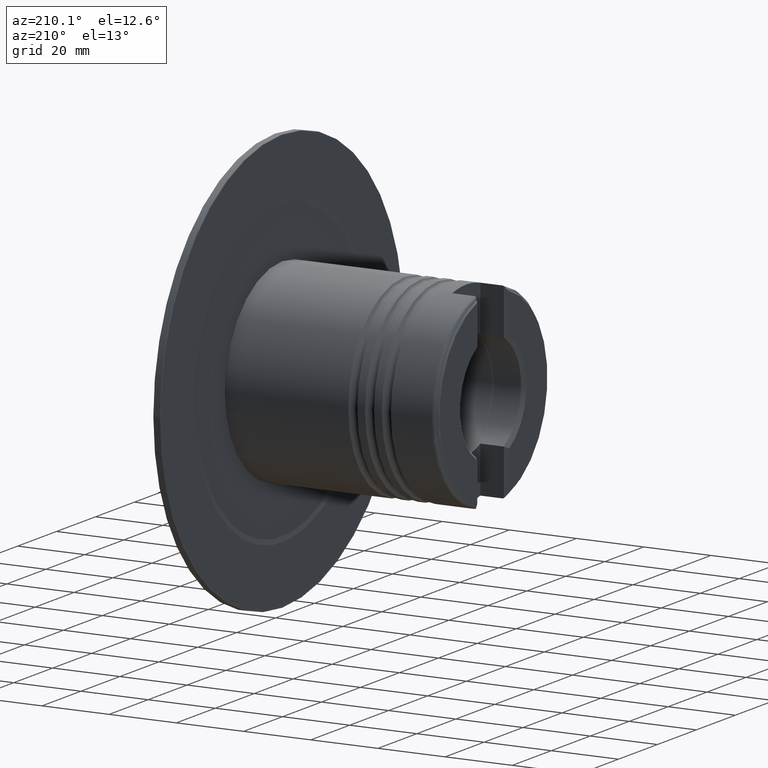
[diagram: clean part render]
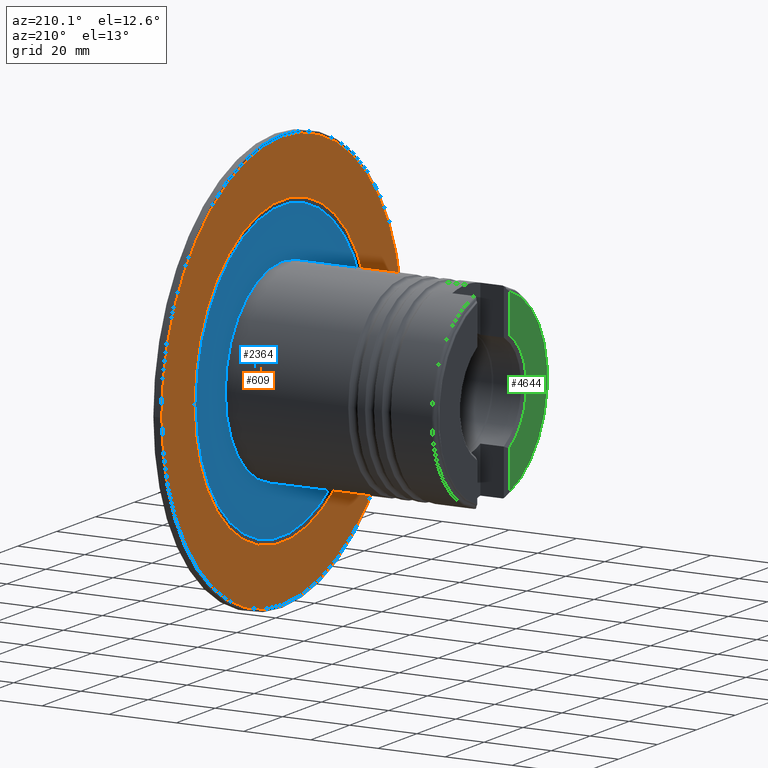
[diagram: same view with three faces highlighted in distinct colors, each labeled with its STEP entity id]
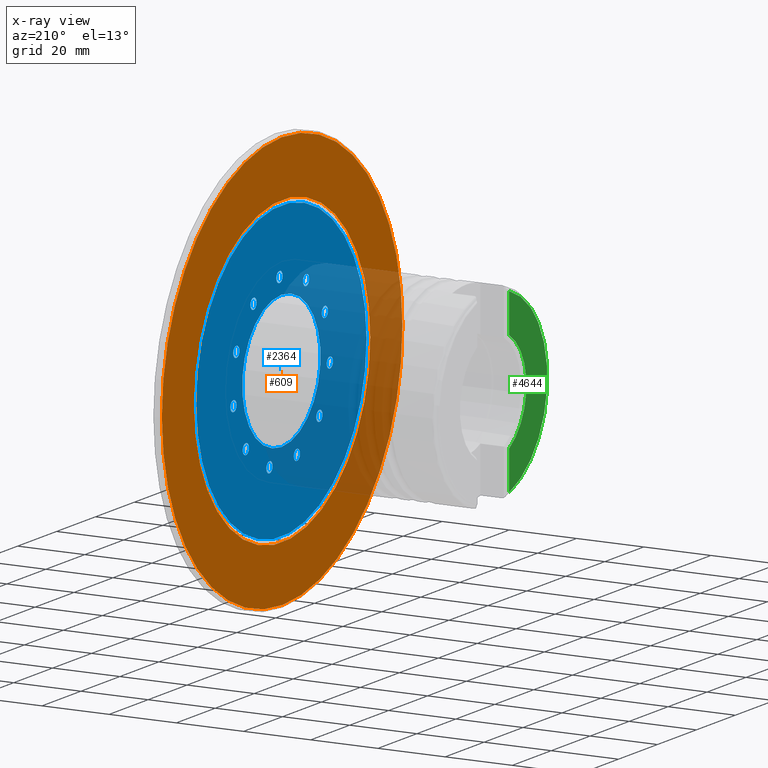
[diagram: x-ray of the same camera — body ghosted, the three highlighted faces saturated]
A machine part, auxiliary view with three faces highlighted in distinct colors.
The next image is the same camera in x-ray (body ghosted, the three faces saturated) — at least one of them is partly hidden behind the body in this view.
Their STEP definitions:

[orange] entity #609 — the highlighted planar face has unit normal (-1, -0, 0).
#72 = ORIENTED_EDGE ( 'NONE', *, *, #5930, .F. ) ;
#248 = ORIENTED_EDGE ( 'NONE', *, *, #1779, .T. ) ;
#594 = AXIS2_PLACEMENT_3D ( 'NONE', #5039, #3518, #1921 ) ;
#609 = ADVANCED_FACE ( 'NONE', ( #2306, #4338 ), #2351, .T. ) ;
#657 = VERTEX_POINT ( 'NONE', #1330 ) ;
#713 = ORIENTED_EDGE ( 'NONE', *, *, #1590, .T. ) ;
#1271 = AXIS2_PLACEMENT_3D ( 'NONE', #4524, #6005, #1855 ) ;
#1295 = AXIS2_PLACEMENT_3D ( 'NONE', #2638, #5232, #1654 ) ;
#1330 = CARTESIAN_POINT ( 'NONE',  ( -1.933569560005745647, -61.74957571563187742, 0.0000000000000000000 ) ) ;
#1429 = VERTEX_POINT ( 'NONE', #4349 ) ;
#1590 = EDGE_CURVE ( 'NONE', #3475, #1429, #3017, .T. ) ;
#1654 = DIRECTION ( 'NONE',  ( -1.246297190717710799E-16, 1.000000000000000000, 0.0000000000000000000 ) ) ;
#1779 = EDGE_CURVE ( 'NONE', #1429, #3475, #4567, .T. ) ;
#1855 = DIRECTION ( 'NONE',  ( 1.244307841631024346E-16, -1.000000000000000000, 0.0000000000000000000 ) ) ;
#1921 = DIRECTION ( 'NONE',  ( -1.246297190717710799E-16, 1.000000000000000000, 0.0000000000000000000 ) ) ;
#2006 = CARTESIAN_POINT ( 'NONE',  ( -1.933569560005747423, -45.23681300828359042, 0.0000000000000000000 ) ) ;
#2306 = FACE_BOUND ( 'NONE', #3108, .T. ) ;
#2351 = PLANE ( 'NONE',  #1271 ) ;
#2402 = AXIS2_PLACEMENT_3D ( 'NONE', #5856, #5369, #4354 ) ;
#2638 = CARTESIAN_POINT ( 'NONE',  ( -1.933569560005753196, -2.825265075440890765E-15, 0.0000000000000000000 ) ) ;
#3017 = CIRCLE ( 'NONE', #594, 45.23681300828359042 ) ;
#3108 = EDGE_LOOP ( 'NONE', ( #713, #248 ) ) ;
#3198 = EDGE_CURVE ( 'NONE', #657, #4538, #5076, .T. ) ;
#3255 = CIRCLE ( 'NONE', #5269, 61.74957571563187742 ) ;
#3475 = VERTEX_POINT ( 'NONE', #2006 ) ;
#3518 = DIRECTION ( 'NONE',  ( 1.000000000000000000, 1.244307841631024346E-16, -0.0000000000000000000 ) ) ;
#4024 = EDGE_LOOP ( 'NONE', ( #4034, #72 ) ) ;
#4034 = ORIENTED_EDGE ( 'NONE', *, *, #3198, .F. ) ;
#4234 = CARTESIAN_POINT ( 'NONE',  ( -1.933569560005760746, 61.74957571563187742, 7.595905422863419188E-15 ) ) ;
#4338 = FACE_OUTER_BOUND ( 'NONE', #4024, .T. ) ;
#4349 = CARTESIAN_POINT ( 'NONE',  ( -1.933569560005758747, 45.23681300828359042, 5.539911825422184346E-15 ) ) ;
#4354 = DIRECTION ( 'NONE',  ( -1.229063539213480583E-16, 1.000000000000000000, 0.0000000000000000000 ) ) ;
#4524 = CARTESIAN_POINT ( 'NONE',  ( -1.933569560005760080, 61.74957571563187742, 0.0000000000000000000 ) ) ;
#4538 = VERTEX_POINT ( 'NONE', #4234 ) ;
#4567 = CIRCLE ( 'NONE', #1295, 45.23681300828359042 ) ;
#4581 = DIRECTION ( 'NONE',  ( 1.000000000000000000, 1.244307841631024346E-16, -0.0000000000000000000 ) ) ;
#5039 = CARTESIAN_POINT ( 'NONE',  ( -1.933569560005753196, -2.825265075440890765E-15, 0.0000000000000000000 ) ) ;
#5076 = CIRCLE ( 'NONE', #2402, 61.74957571563187742 ) ;
#5126 = CARTESIAN_POINT ( 'NONE',  ( -1.933569560005753196, -2.825265075440890765E-15, 0.0000000000000000000 ) ) ;
#5232 = DIRECTION ( 'NONE',  ( 1.000000000000000000, 1.244307841631024346E-16, -0.0000000000000000000 ) ) ;
#5269 = AXIS2_PLACEMENT_3D ( 'NONE', #5126, #4581, #6119 ) ;
#5369 = DIRECTION ( 'NONE',  ( 1.000000000000000000, 1.244307841631024346E-16, -0.0000000000000000000 ) ) ;
#5856 = CARTESIAN_POINT ( 'NONE',  ( -1.933569560005753196, -2.825265075440890765E-15, 0.0000000000000000000 ) ) ;
#5930 = EDGE_CURVE ( 'NONE', #4538, #657, #3255, .T. ) ;
#6005 = DIRECTION ( 'NONE',  ( -1.000000000000000000, -1.244307841631024346E-16, 0.0000000000000000000 ) ) ;
#6119 = DIRECTION ( 'NONE',  ( -1.229063539213480583E-16, 1.000000000000000000, 0.0000000000000000000 ) ) ;

[blue] entity #2364 — the highlighted planar face has unit normal (-1, 0, -0).
#10 = AXIS2_PLACEMENT_3D ( 'NONE', #2525, #1468, #1410 ) ;
#40 = DIRECTION ( 'NONE',  ( 0.0000000000000000000, 0.9898214418809340165, -0.1423148382732756234 ) ) ;
#106 = EDGE_CURVE ( 'NONE', #4244, #3899, #3620, .T. ) ;
#170 = DIRECTION ( 'NONE',  ( -1.000000000000000000, 0.0000000000000000000, 0.0000000000000000000 ) ) ;
#212 = CIRCLE ( 'NONE', #1894, 1.599999999999999645 ) ;
#258 = AXIS2_PLACEMENT_3D ( 'NONE', #1488, #5187, #6205 ) ;
#276 = DIRECTION ( 'NONE',  ( -7.861527457316623400E-16, -1.000000000000000000, 0.0000000000000000000 ) ) ;
#322 = ORIENTED_EDGE ( 'NONE', *, *, #4566, .F. ) ;
#337 = CARTESIAN_POINT ( 'NONE',  ( -1.700000000000020828, 0.0000000000000000000, 20.09999999999998010 ) ) ;
#377 = FACE_BOUND ( 'NONE', #6466, .T. ) ;
#398 = DIRECTION ( 'NONE',  ( -1.000000000000000000, 0.0000000000000000000, 0.0000000000000000000 ) ) ;
#408 = AXIS2_PLACEMENT_3D ( 'NONE', #4336, #1210, #4851 ) ;
#421 = CARTESIAN_POINT ( 'NONE',  ( -1.700000000000003508, 18.29736305454335366, -17.03544848984704174 ) ) ;
#531 = DIRECTION ( 'NONE',  ( 0.0000000000000000000, 0.5406408174555863422, 0.8412535328311883109 ) ) ;
#555 = VERTEX_POINT ( 'NONE', #4416 ) ;
#557 = EDGE_CURVE ( 'NONE', #3665, #5460, #3299, .T. ) ;
#581 = VERTEX_POINT ( 'NONE', #3871 ) ;
#608 = CARTESIAN_POINT ( 'NONE',  ( -1.700000000000003508, -0.5631028465928065163, 25.64873466222780607 ) ) ;
#619 = DIRECTION ( 'NONE',  ( 0.0000000000000000000, 0.7557495743542639310, -0.6548607339452785503 ) ) ;
#632 = DIRECTION ( 'NONE',  ( -1.000000000000000000, -0.0000000000000000000, 0.0000000000000000000 ) ) ;
#704 = ORIENTED_EDGE ( 'NONE', *, *, #995, .F. ) ;
#723 = CIRCLE ( 'NONE', #3598, 1.600000000000000533 ) ;
#745 = ORIENTED_EDGE ( 'NONE', *, *, #4169, .F. ) ;
#746 = CIRCLE ( 'NONE', #862, 1.599999999999999201 ) ;
#793 = DIRECTION ( 'NONE',  ( -1.000000000000000000, 0.0000000000000000000, 0.0000000000000000000 ) ) ;
#808 = EDGE_CURVE ( 'NONE', #1457, #3341, #2473, .T. ) ;
#823 = CARTESIAN_POINT ( 'NONE',  ( -1.700000000000003508, -21.14643242752604380, 12.23820742588014276 ) ) ;
#824 = AXIS2_PLACEMENT_3D ( 'NONE', #4707, #3164, #531 ) ;
#862 = AXIS2_PLACEMENT_3D ( 'NONE', #3769, #632, #1112 ) ;
#866 = FACE_BOUND ( 'NONE', #2178, .T. ) ;
#881 = ORIENTED_EDGE ( 'NONE', *, *, #1696, .F. ) ;
#906 = DIRECTION ( 'NONE',  ( -1.000000000000000000, -0.0000000000000000000, 0.0000000000000000000 ) ) ;
#951 = AXIS2_PLACEMENT_3D ( 'NONE', #1775, #2891, #2321 ) ;
#966 = DIRECTION ( 'NONE',  ( 0.0000000000000000000, -0.9898214418809322401, -0.1423148382732886963 ) ) ;
#988 = CIRCLE ( 'NONE', #408, 1.600000000000000755 ) ;
#995 = EDGE_CURVE ( 'NONE', #581, #3407, #988, .T. ) ;
#1017 = EDGE_CURVE ( 'NONE', #5727, #4848, #3375, .T. ) ;
#1112 = DIRECTION ( 'NONE',  ( 0.0000000000000000000, 0.5406408174555863422, 0.8412535328311883109 ) ) ;
#1163 = DIRECTION ( 'NONE',  ( -1.000000000000000000, 0.0000000000000000000, 0.0000000000000000000 ) ) ;
#1177 = CIRCLE ( 'NONE', #5703, 1.599999999999999645 ) ;
#1210 = DIRECTION ( 'NONE',  ( -1.000000000000000000, 0.0000000000000000000, 0.0000000000000000000 ) ) ;
#1287 = DIRECTION ( 'NONE',  ( -1.000000000000000000, 0.0000000000000000000, -0.0000000000000000000 ) ) ;
#1297 = AXIS2_PLACEMENT_3D ( 'NONE', #6389, #6320, #619 ) ;
#1336 = VERTEX_POINT ( 'NONE', #5731 ) ;
#1346 = VERTEX_POINT ( 'NONE', #608 ) ;
#1362 = ORIENTED_EDGE ( 'NONE', *, *, #5872, .F. ) ;
#1372 = EDGE_CURVE ( 'NONE', #1336, #3901, #6310, .T. ) ;
#1381 = AXIS2_PLACEMENT_3D ( 'NONE', #2829, #170, #2242 ) ;
#1410 = DIRECTION ( 'NONE',  ( -7.883334753769310508E-16, -1.000000000000000000, 0.0000000000000000000 ) ) ;
#1453 = ORIENTED_EDGE ( 'NONE', *, *, #5021, .F. ) ;
#1457 = VERTEX_POINT ( 'NONE', #5920 ) ;
#1465 = CARTESIAN_POINT ( 'NONE',  ( -1.700000000000003508, -12.75675082652259285, 21.50035600519245449 ) ) ;
#1468 = DIRECTION ( 'NONE',  ( 1.000000000000000000, -7.861527457316623400E-16, 0.0000000000000000000 ) ) ;
#1488 = CARTESIAN_POINT ( 'NONE',  ( -1.700000000000003508, 23.09698831278215891, 9.567085809127265250 ) ) ;
#1515 = CARTESIAN_POINT ( 'NONE',  ( -1.700000000000003508, 16.84195186197613126, -17.70011251065007940 ) ) ;
#1519 = ORIENTED_EDGE ( 'NONE', *, *, #4052, .F. ) ;
#1527 = ORIENTED_EDGE ( 'NONE', *, *, #1372, .F. ) ;
#1582 = CIRCLE ( 'NONE', #6105, 1.600000000000000089 ) ;
#1587 = VERTEX_POINT ( 'NONE', #337 ) ;
#1696 = EDGE_CURVE ( 'NONE', #6207, #6445, #3357, .T. ) ;
#1707 = DIRECTION ( 'NONE',  ( 0.0000000000000000000, 0.9096319953545135562, 0.4154150130018967046 ) ) ;
#1775 = CARTESIAN_POINT ( 'NONE',  ( -1.700000000000020828, 0.0000000000000000000, 0.0000000000000000000 ) ) ;
#1801 = CARTESIAN_POINT ( 'NONE',  ( -1.700000000000003508, 0.8923083459744240997, 24.98407064142479328 ) ) ;
#1807 = CARTESIAN_POINT ( 'NONE',  ( -1.700000000000003508, -23.56483106545966422, 10.14265307725522014 ) ) ;
#1875 = DIRECTION ( 'NONE',  ( -1.000000000000000000, 7.861527457316623400E-16, 0.0000000000000000000 ) ) ;
#1894 = AXIS2_PLACEMENT_3D ( 'NONE', #3837, #2245, #2339 ) ;
#1940 = CARTESIAN_POINT ( 'NONE',  ( -1.700000000000003508, 7.766376820865159125, -24.45113628577485443 ) ) ;
#1959 = CARTESIAN_POINT ( 'NONE',  ( -1.700000000000003508, 14.25806592337406187, 20.53551937801232441 ) ) ;
#1982 = AXIS2_PLACEMENT_3D ( 'NONE', #4424, #793, #6030 ) ;
#1983 = CARTESIAN_POINT ( 'NONE',  ( -1.700000000000003508, 2.347719538541654494, 24.31940662062177694 ) ) ;
#2004 = FACE_BOUND ( 'NONE', #5967, .T. ) ;
#2032 = CARTESIAN_POINT ( 'NONE',  ( -1.700000000000003508, -22.35563174649285401, 11.19043025156768145 ) ) ;
#2051 = CIRCLE ( 'NONE', #4794, 1.599999999999999423 ) ;
#2095 = VERTEX_POINT ( 'NONE', #5653 ) ;
#2143 = EDGE_LOOP ( 'NONE', ( #745, #322 ) ) ;
#2172 = CIRCLE ( 'NONE', #258, 1.599999999999998979 ) ;
#2178 = EDGE_LOOP ( 'NONE', ( #2614, #881 ) ) ;
#2217 = EDGE_CURVE ( 'NONE', #555, #2952, #3365, .T. ) ;
#2242 = DIRECTION ( 'NONE',  ( 0.0000000000000000000, 0.2817325568414364989, -0.9594929736144953702 ) ) ;
#2245 = DIRECTION ( 'NONE',  ( -1.000000000000000000, 0.0000000000000000000, 0.0000000000000000000 ) ) ;
#2264 = CIRCLE ( 'NONE', #4924, 1.600000000000001199 ) ;
#2321 = DIRECTION ( 'NONE',  ( -7.875299362332521982E-16, -1.000000000000000000, 0.0000000000000000000 ) ) ;
#2339 = DIRECTION ( 'NONE',  ( 0.0000000000000000000, 0.9898214418809340165, -0.1423148382732756234 ) ) ;
#2355 = ORIENTED_EDGE ( 'NONE', *, *, #2975, .F. ) ;
#2358 = VERTEX_POINT ( 'NONE', #3388 ) ;
#2364 = ADVANCED_FACE ( 'NONE', ( #5720, #6051, #4699, #3328, #5015, #377, #866, #4042, #6276, #6690, #2004, #3653, #6203 ), #2404, .T. ) ;
#2366 = EDGE_LOOP ( 'NONE', ( #1527, #1453 ) ) ;
#2394 = CIRCLE ( 'NONE', #824, 1.599999999999999201 ) ;
#2398 = AXIS2_PLACEMENT_3D ( 'NONE', #2998, #3545, #4040 ) ;
#2404 = PLANE ( 'NONE',  #4503 ) ;
#2443 = EDGE_CURVE ( 'NONE', #6445, #6207, #1582, .T. ) ;
#2463 = CARTESIAN_POINT ( 'NONE',  ( -1.700000000000003508, -12.75675082652259285, 21.50035600519245449 ) ) ;
#2471 = DIRECTION ( 'NONE',  ( -7.875299362332521982E-16, -1.000000000000000000, 0.0000000000000000000 ) ) ;
#2473 = CIRCLE ( 'NONE', #2398, 43.73482816843979037 ) ;
#2484 = DIRECTION ( 'NONE',  ( -1.000000000000000000, 0.0000000000000000000, 0.0000000000000000000 ) ) ;
#2525 = CARTESIAN_POINT ( 'NONE',  ( -1.700000000000021050, -2.796201831932747107E-15, 0.0000000000000000000 ) ) ;
#2558 = DIRECTION ( 'NONE',  ( -1.000000000000000000, 0.0000000000000000000, -0.0000000000000000000 ) ) ;
#2614 = ORIENTED_EDGE ( 'NONE', *, *, #2443, .F. ) ;
#2628 = AXIS2_PLACEMENT_3D ( 'NONE', #1959, #3525, #6068 ) ;
#2652 = ORIENTED_EDGE ( 'NONE', *, *, #4876, .F. ) ;
#2668 = ORIENTED_EDGE ( 'NONE', *, *, #3491, .F. ) ;
#2727 = CIRCLE ( 'NONE', #3099, 1.599999999999999201 ) ;
#2730 = CARTESIAN_POINT ( 'NONE',  ( -1.700000000000003508, -24.85675754429741602, -2.672378039128009419 ) ) ;
#2736 = CARTESIAN_POINT ( 'NONE',  ( -1.700000000000003508, -24.40598545335113911, -1.137189281344811231 ) ) ;
#2762 = EDGE_LOOP ( 'NONE', ( #3085, #5311 ) ) ;
#2829 = CARTESIAN_POINT ( 'NONE',  ( -1.700000000000003508, -19.46603845124374388, -15.68672518452146569 ) ) ;
#2830 = ORIENTED_EDGE ( 'NONE', *, *, #5442, .F. ) ;
#2834 = CARTESIAN_POINT ( 'NONE',  ( -1.700000000000003508, -19.91681054219004210, -14.15153642673827505 ) ) ;
#2891 = DIRECTION ( 'NONE',  ( 1.000000000000000000, -7.861527457316623400E-16, 0.0000000000000000000 ) ) ;
#2911 = EDGE_LOOP ( 'NONE', ( #5181, #704 ) ) ;
#2952 = VERTEX_POINT ( 'NONE', #1515 ) ;
#2968 = EDGE_CURVE ( 'NONE', #4848, #5727, #2172, .T. ) ;
#2975 = EDGE_CURVE ( 'NONE', #2095, #5337, #1177, .T. ) ;
#2998 = CARTESIAN_POINT ( 'NONE',  ( -1.700000000000021050, -2.796201831932747107E-15, 0.0000000000000000000 ) ) ;
#3032 = CARTESIAN_POINT ( 'NONE',  ( -1.700000000000003508, 0.8923083459744240997, 24.98407064142479328 ) ) ;
#3052 = EDGE_CURVE ( 'NONE', #5337, #2095, #212, .T. ) ;
#3085 = ORIENTED_EDGE ( 'NONE', *, *, #4746, .T. ) ;
#3086 = DIRECTION ( 'NONE',  ( 0.0000000000000000000, -0.7557495743542552713, -0.6548607339452884313 ) ) ;
#3099 = AXIS2_PLACEMENT_3D ( 'NONE', #1465, #5590, #966 ) ;
#3123 = CARTESIAN_POINT ( 'NONE',  ( -1.700000000000020828, 2.461540066286177109E-15, -20.09999999999998010 ) ) ;
#3137 = CARTESIAN_POINT ( 'NONE',  ( -1.700000000000003508, 6.182662513855665232, -24.22343254453761219 ) ) ;
#3164 = DIRECTION ( 'NONE',  ( -1.000000000000000000, -0.0000000000000000000, 0.0000000000000000000 ) ) ;
#3236 = CARTESIAN_POINT ( 'NONE',  ( -1.700000000000003508, 23.09698831278215891, 9.567085809127265250 ) ) ;
#3299 = CIRCLE ( 'NONE', #3614, 1.600000000000000311 ) ;
#3306 = DIRECTION ( 'NONE',  ( 0.0000000000000000000, 0.2817325568414364989, -0.9594929736144953702 ) ) ;
#3328 = FACE_BOUND ( 'NONE', #5742, .T. ) ;
#3341 = VERTEX_POINT ( 'NONE', #4033 ) ;
#3357 = CIRCLE ( 'NONE', #5599, 1.600000000000000089 ) ;
#3365 = CIRCLE ( 'NONE', #5216, 1.600000000000001199 ) ;
#3375 = CIRCLE ( 'NONE', #6517, 1.599999999999998979 ) ;
#3388 = CARTESIAN_POINT ( 'NONE',  ( -1.700000000000003508, 23.73775480047402553, -5.784835558887131413 ) ) ;
#3407 = VERTEX_POINT ( 'NONE', #4631 ) ;
#3491 = EDGE_CURVE ( 'NONE', #1346, #3892, #6418, .T. ) ;
#3525 = DIRECTION ( 'NONE',  ( -1.000000000000000000, 0.0000000000000000000, -0.0000000000000000000 ) ) ;
#3545 = DIRECTION ( 'NONE',  ( 1.000000000000000000, -7.861527457316623400E-16, 0.0000000000000000000 ) ) ;
#3574 = VERTEX_POINT ( 'NONE', #4207 ) ;
#3598 = AXIS2_PLACEMENT_3D ( 'NONE', #2032, #3638, #3086 ) ;
#3614 = AXIS2_PLACEMENT_3D ( 'NONE', #6436, #1287, #4389 ) ;
#3620 = CIRCLE ( 'NONE', #1982, 1.600000000000000533 ) ;
#3638 = DIRECTION ( 'NONE',  ( -1.000000000000000000, 0.0000000000000000000, 0.0000000000000000000 ) ) ;
#3653 = FACE_BOUND ( 'NONE', #2143, .T. ) ;
#3662 = CIRCLE ( 'NONE', #2628, 1.600000000000000311 ) ;
#3665 = VERTEX_POINT ( 'NONE', #5324 ) ;
#3670 = DIRECTION ( 'NONE',  ( -1.000000000000000000, 0.0000000000000000000, 0.0000000000000000000 ) ) ;
#3713 = AXIS2_PLACEMENT_3D ( 'NONE', #3032, #2558, #4048 ) ;
#3769 = CARTESIAN_POINT ( 'NONE',  ( -1.700000000000003508, 24.60278010840296403, -4.438829906357230293 ) ) ;
#3786 = DIRECTION ( 'NONE',  ( -1.000000000000000000, -0.0000000000000000000, 0.0000000000000000000 ) ) ;
#3835 = ORIENTED_EDGE ( 'NONE', *, *, #6359, .F. ) ;
#3837 = CARTESIAN_POINT ( 'NONE',  ( -1.700000000000003508, 6.182662513855665232, -24.22343254453761219 ) ) ;
#3861 = CARTESIAN_POINT ( 'NONE',  ( -1.700000000000003508, -19.46603845124374388, -15.68672518452146569 ) ) ;
#3871 = CARTESIAN_POINT ( 'NONE',  ( -1.700000000000003508, -9.104189009342206873, -22.67287074662062452 ) ) ;
#3892 = VERTEX_POINT ( 'NONE', #1983 ) ;
#3899 = VERTEX_POINT ( 'NONE', #823 ) ;
#3901 = VERTEX_POINT ( 'NONE', #2834 ) ;
#3946 = DIRECTION ( 'NONE',  ( -1.000000000000000000, 0.0000000000000000000, -0.0000000000000000000 ) ) ;
#3955 = DIRECTION ( 'NONE',  ( 1.000000000000000000, -7.861527457316623400E-16, 0.0000000000000000000 ) ) ;
#3972 = CARTESIAN_POINT ( 'NONE',  ( -1.700000000000003508, 23.09698831278215891, 11.16708580912726312 ) ) ;
#4033 = CARTESIAN_POINT ( 'NONE',  ( -1.700000000000055467, -43.73482816843979037, 0.0000000000000000000 ) ) ;
#4038 = CARTESIAN_POINT ( 'NONE',  ( -1.700000000000003508, -24.85675754429741602, -2.672378039128009419 ) ) ;
#4040 = DIRECTION ( 'NONE',  ( -7.883334753769310508E-16, -1.000000000000000000, 0.0000000000000000000 ) ) ;
#4042 = FACE_BOUND ( 'NONE', #2366, .T. ) ;
#4045 = DIRECTION ( 'NONE',  ( 0.0000000000000000000, 0.9096319953545135562, 0.4154150130018967046 ) ) ;
#4046 = EDGE_LOOP ( 'NONE', ( #2652, #4625 ) ) ;
#4048 = DIRECTION ( 'NONE',  ( 0.0000000000000000000, -0.9096319953545194403, 0.4154150130018841036 ) ) ;
#4052 = EDGE_CURVE ( 'NONE', #4652, #3574, #2727, .T. ) ;
#4169 = EDGE_CURVE ( 'NONE', #4278, #2358, #746, .T. ) ;
#4207 = CARTESIAN_POINT ( 'NONE',  ( -1.700000000000003508, -14.34046513353208319, 21.27265226395519448 ) ) ;
#4242 = CIRCLE ( 'NONE', #5257, 1.599999999999997424 ) ;
#4244 = VERTEX_POINT ( 'NONE', #1807 ) ;
#4264 = EDGE_LOOP ( 'NONE', ( #5739, #5140 ) ) ;
#4278 = VERTEX_POINT ( 'NONE', #6008 ) ;
#4284 = EDGE_LOOP ( 'NONE', ( #5408, #5657 ) ) ;
#4291 = CARTESIAN_POINT ( 'NONE',  ( -1.700000000000003508, -11.17303651951310250, 21.72805974642971805 ) ) ;
#4336 = CARTESIAN_POINT ( 'NONE',  ( -1.700000000000003508, -7.894989690375383340, -23.72064792093307162 ) ) ;
#4389 = DIRECTION ( 'NONE',  ( 0.0000000000000000000, -0.5406408174555989987, 0.8412535328311803173 ) ) ;
#4391 = EDGE_CURVE ( 'NONE', #4563, #1587, #5853, .T. ) ;
#4409 = CIRCLE ( 'NONE', #10, 43.73482816843979037 ) ;
#4416 = CARTESIAN_POINT ( 'NONE',  ( -1.700000000000003508, 19.75277424711057606, -16.37078446904400764 ) ) ;
#4424 = CARTESIAN_POINT ( 'NONE',  ( -1.700000000000003508, -22.35563174649285401, 11.19043025156768145 ) ) ;
#4454 = DIRECTION ( 'NONE',  ( 0.0000000000000000000, -0.9096319953545194403, 0.4154150130018841036 ) ) ;
#4458 = DIRECTION ( 'NONE',  ( 0.0000000000000000000, -0.9898214418809322401, -0.1423148382732886963 ) ) ;
#4480 = ORIENTED_EDGE ( 'NONE', *, *, #4728, .F. ) ;
#4503 = AXIS2_PLACEMENT_3D ( 'NONE', #4971, #1875, #276 ) ;
#4563 = VERTEX_POINT ( 'NONE', #3123 ) ;
#4566 = EDGE_CURVE ( 'NONE', #2358, #4278, #2394, .T. ) ;
#4625 = ORIENTED_EDGE ( 'NONE', *, *, #808, .F. ) ;
#4631 = CARTESIAN_POINT ( 'NONE',  ( -1.700000000000003508, -6.685790371408560695, -24.76842509524551517 ) ) ;
#4639 = EDGE_CURVE ( 'NONE', #3407, #581, #5372, .T. ) ;
#4652 = VERTEX_POINT ( 'NONE', #4291 ) ;
#4683 = CARTESIAN_POINT ( 'NONE',  ( -1.700000000000003508, 15.12309123130301991, 19.18951372548243484 ) ) ;
#4699 = FACE_BOUND ( 'NONE', #4284, .T. ) ;
#4704 = AXIS2_PLACEMENT_3D ( 'NONE', #4978, #3955, #2471 ) ;
#4707 = CARTESIAN_POINT ( 'NONE',  ( -1.700000000000003508, 24.60278010840296403, -4.438829906357230293 ) ) ;
#4728 = EDGE_CURVE ( 'NONE', #3892, #1346, #2051, .T. ) ;
#4729 = DIRECTION ( 'NONE',  ( 0.0000000000000000000, -0.2817325568414230652, -0.9594929736144992560 ) ) ;
#4746 = EDGE_CURVE ( 'NONE', #1587, #4563, #5046, .T. ) ;
#4794 = AXIS2_PLACEMENT_3D ( 'NONE', #1801, #3946, #4454 ) ;
#4848 = VERTEX_POINT ( 'NONE', #3972 ) ;
#4851 = DIRECTION ( 'NONE',  ( 0.0000000000000000000, 0.7557495743542639310, -0.6548607339452785503 ) ) ;
#4876 = EDGE_CURVE ( 'NONE', #3341, #1457, #4409, .T. ) ;
#4888 = AXIS2_PLACEMENT_3D ( 'NONE', #2463, #2484, #4458 ) ;
#4924 = AXIS2_PLACEMENT_3D ( 'NONE', #421, #906, #4045 ) ;
#4971 = CARTESIAN_POINT ( 'NONE',  ( -1.699999999999972422, 61.50000000000000000, 0.0000000000000000000 ) ) ;
#4978 = CARTESIAN_POINT ( 'NONE',  ( -1.700000000000020828, 0.0000000000000000000, 0.0000000000000000000 ) ) ;
#5015 = FACE_BOUND ( 'NONE', #5261, .T. ) ;
#5021 = EDGE_CURVE ( 'NONE', #3901, #1336, #4242, .T. ) ;
#5046 = CIRCLE ( 'NONE', #951, 20.09999999999999432 ) ;
#5140 = ORIENTED_EDGE ( 'NONE', *, *, #1017, .F. ) ;
#5181 = ORIENTED_EDGE ( 'NONE', *, *, #4639, .F. ) ;
#5187 = DIRECTION ( 'NONE',  ( -1.000000000000000000, -0.0000000000000000000, -0.0000000000000000000 ) ) ;
#5206 = DIRECTION ( 'NONE',  ( -1.000000000000000000, 0.0000000000000000000, 0.0000000000000000000 ) ) ;
#5216 = AXIS2_PLACEMENT_3D ( 'NONE', #6345, #3786, #1707 ) ;
#5218 = ORIENTED_EDGE ( 'NONE', *, *, #3052, .F. ) ;
#5257 = AXIS2_PLACEMENT_3D ( 'NONE', #3861, #1163, #3306 ) ;
#5261 = EDGE_LOOP ( 'NONE', ( #3835, #1519 ) ) ;
#5311 = ORIENTED_EDGE ( 'NONE', *, *, #4391, .T. ) ;
#5320 = DIRECTION ( 'NONE',  ( -1.000000000000000000, -0.0000000000000000000, -0.0000000000000000000 ) ) ;
#5324 = CARTESIAN_POINT ( 'NONE',  ( -1.700000000000003508, 13.39304061544510382, 21.88152503054221398 ) ) ;
#5337 = VERTEX_POINT ( 'NONE', #1940 ) ;
#5371 = DIRECTION ( 'NONE',  ( 0.0000000000000000000, 0.0000000000000000000, 1.000000000000000000 ) ) ;
#5372 = CIRCLE ( 'NONE', #1297, 1.600000000000000755 ) ;
#5408 = ORIENTED_EDGE ( 'NONE', *, *, #557, .F. ) ;
#5422 = CARTESIAN_POINT ( 'NONE',  ( -1.700000000000003508, 23.09698831278215891, 7.967085809127265605 ) ) ;
#5442 = EDGE_CURVE ( 'NONE', #3899, #4244, #723, .T. ) ;
#5460 = VERTEX_POINT ( 'NONE', #4683 ) ;
#5590 = DIRECTION ( 'NONE',  ( -1.000000000000000000, 0.0000000000000000000, 0.0000000000000000000 ) ) ;
#5599 = AXIS2_PLACEMENT_3D ( 'NONE', #2730, #5206, #4729 ) ;
#5653 = CARTESIAN_POINT ( 'NONE',  ( -1.700000000000003508, 4.598948206846170450, -23.99572880330036995 ) ) ;
#5657 = ORIENTED_EDGE ( 'NONE', *, *, #5889, .F. ) ;
#5703 = AXIS2_PLACEMENT_3D ( 'NONE', #3137, #3670, #40 ) ;
#5720 = FACE_BOUND ( 'NONE', #2762, .T. ) ;
#5727 = VERTEX_POINT ( 'NONE', #5422 ) ;
#5731 = CARTESIAN_POINT ( 'NONE',  ( -1.700000000000003508, -19.01526636029744921, -17.22191394230465633 ) ) ;
#5739 = ORIENTED_EDGE ( 'NONE', *, *, #2968, .F. ) ;
#5742 = EDGE_LOOP ( 'NONE', ( #2668, #4480 ) ) ;
#5853 = CIRCLE ( 'NONE', #4704, 20.09999999999999432 ) ;
#5872 = EDGE_CURVE ( 'NONE', #2952, #555, #2264, .T. ) ;
#5889 = EDGE_CURVE ( 'NONE', #5460, #3665, #3662, .T. ) ;
#5920 = CARTESIAN_POINT ( 'NONE',  ( -1.699999999999986411, 43.73482816843979037, 5.447941779098057074E-15 ) ) ;
#5967 = EDGE_LOOP ( 'NONE', ( #6633, #1362 ) ) ;
#6008 = CARTESIAN_POINT ( 'NONE',  ( -1.700000000000003508, 25.46780541633190253, -3.092824253827330061 ) ) ;
#6030 = DIRECTION ( 'NONE',  ( 0.0000000000000000000, -0.7557495743542552713, -0.6548607339452884313 ) ) ;
#6051 = FACE_BOUND ( 'NONE', #4264, .T. ) ;
#6059 = CARTESIAN_POINT ( 'NONE',  ( -1.700000000000003508, -25.30752963524369292, -4.207566796911208051 ) ) ;
#6068 = DIRECTION ( 'NONE',  ( 0.0000000000000000000, -0.5406408174555989987, 0.8412535328311803173 ) ) ;
#6105 = AXIS2_PLACEMENT_3D ( 'NONE', #4038, #398, #6592 ) ;
#6203 = FACE_OUTER_BOUND ( 'NONE', #4046, .T. ) ;
#6205 = DIRECTION ( 'NONE',  ( 0.0000000000000000000, 0.0000000000000000000, 1.000000000000000000 ) ) ;
#6207 = VERTEX_POINT ( 'NONE', #2736 ) ;
#6276 = FACE_BOUND ( 'NONE', #2911, .T. ) ;
#6310 = CIRCLE ( 'NONE', #1381, 1.599999999999997424 ) ;
#6320 = DIRECTION ( 'NONE',  ( -1.000000000000000000, 0.0000000000000000000, 0.0000000000000000000 ) ) ;
#6345 = CARTESIAN_POINT ( 'NONE',  ( -1.700000000000003508, 18.29736305454335366, -17.03544848984704174 ) ) ;
#6359 = EDGE_CURVE ( 'NONE', #3574, #4652, #6376, .T. ) ;
#6376 = CIRCLE ( 'NONE', #4888, 1.599999999999999201 ) ;
#6389 = CARTESIAN_POINT ( 'NONE',  ( -1.700000000000003508, -7.894989690375383340, -23.72064792093307162 ) ) ;
#6418 = CIRCLE ( 'NONE', #3713, 1.599999999999999423 ) ;
#6436 = CARTESIAN_POINT ( 'NONE',  ( -1.700000000000003508, 14.25806592337406187, 20.53551937801232441 ) ) ;
#6445 = VERTEX_POINT ( 'NONE', #6059 ) ;
#6460 = ORIENTED_EDGE ( 'NONE', *, *, #106, .F. ) ;
#6466 = EDGE_LOOP ( 'NONE', ( #6460, #2830 ) ) ;
#6517 = AXIS2_PLACEMENT_3D ( 'NONE', #3236, #5320, #5371 ) ;
#6546 = EDGE_LOOP ( 'NONE', ( #5218, #2355 ) ) ;
#6592 = DIRECTION ( 'NONE',  ( 0.0000000000000000000, -0.2817325568414230652, -0.9594929736144992560 ) ) ;
#6633 = ORIENTED_EDGE ( 'NONE', *, *, #2217, .F. ) ;
#6690 = FACE_BOUND ( 'NONE', #6546, .T. ) ;

[green] entity #4644 — the highlighted planar face has unit normal (-1, 0, 0).
#38 = VERTEX_POINT ( 'NONE', #598 ) ;
#132 = DIRECTION ( 'NONE',  ( 0.0000000000000000000, 0.0000000000000000000, 1.000000000000000000 ) ) ;
#476 = ORIENTED_EDGE ( 'NONE', *, *, #3304, .F. ) ;
#598 = CARTESIAN_POINT ( 'NONE',  ( -64.74972663000005468, -8.200000000000047251, -14.97717012656265467 ) ) ;
#694 = DIRECTION ( 'NONE',  ( -1.000000000000000000, 0.0000000000000000000, 0.0000000000000000000 ) ) ;
#727 = DIRECTION ( 'NONE',  ( -0.0000000000000000000, -0.0000000000000000000, 1.000000000000000000 ) ) ;
#783 = ORIENTED_EDGE ( 'NONE', *, *, #1097, .F. ) ;
#919 = DIRECTION ( 'NONE',  ( 0.0000000000000000000, 0.0000000000000000000, -1.000000000000000000 ) ) ;
#938 = CARTESIAN_POINT ( 'NONE',  ( -64.74972662999999784, 0.0000000000000000000, 0.0000000000000000000 ) ) ;
#972 = VERTEX_POINT ( 'NONE', #3259 ) ;
#1004 = ORIENTED_EDGE ( 'NONE', *, *, #4023, .T. ) ;
#1097 = EDGE_CURVE ( 'NONE', #5242, #5646, #2872, .T. ) ;
#2091 = AXIS2_PLACEMENT_3D ( 'NONE', #2801, #694, #132 ) ;
#2124 = FACE_OUTER_BOUND ( 'NONE', #4227, .T. ) ;
#2289 = CARTESIAN_POINT ( 'NONE',  ( -64.74972663000001205, 0.0000000000000000000, 0.0000000000000000000 ) ) ;
#2560 = CIRCLE ( 'NONE', #5163, 17.07499999999999574 ) ;
#2801 = CARTESIAN_POINT ( 'NONE',  ( -64.74972662999999784, 27.78759070216159444, 0.0000000000000000000 ) ) ;
#2818 = CARTESIAN_POINT ( 'NONE',  ( -64.74972663000005468, -8.200000000000050804, -30.00000000000000355 ) ) ;
#2828 = CARTESIAN_POINT ( 'NONE',  ( -64.74972663000005468, -8.200000000000047251, 26.55014495310441802 ) ) ;
#2862 = DIRECTION ( 'NONE',  ( 0.0000000000000000000, 0.0000000000000000000, -1.000000000000000000 ) ) ;
#2872 = LINE ( 'NONE', #2818, #3536 ) ;
#3046 = DIRECTION ( 'NONE',  ( 1.000000000000000000, -0.0000000000000000000, -0.0000000000000000000 ) ) ;
#3074 = EDGE_CURVE ( 'NONE', #5646, #972, #4607, .T. ) ;
#3140 = VECTOR ( 'NONE', #727, 1000.000000000000000 ) ;
#3254 = ORIENTED_EDGE ( 'NONE', *, *, #3074, .F. ) ;
#3259 = CARTESIAN_POINT ( 'NONE',  ( -64.74972663000005468, -8.200000000000047251, -26.55014495310441802 ) ) ;
#3304 = EDGE_CURVE ( 'NONE', #972, #38, #5960, .T. ) ;
#3377 = DIRECTION ( 'NONE',  ( 1.000000000000000000, -0.0000000000000000000, -0.0000000000000000000 ) ) ;
#3536 = VECTOR ( 'NONE', #3944, 1000.000000000000000 ) ;
#3661 = AXIS2_PLACEMENT_3D ( 'NONE', #2289, #3377, #2862 ) ;
#3944 = DIRECTION ( 'NONE',  ( -0.0000000000000000000, -0.0000000000000000000, 1.000000000000000000 ) ) ;
#4023 = EDGE_CURVE ( 'NONE', #5242, #38, #2560, .T. ) ;
#4227 = EDGE_LOOP ( 'NONE', ( #476, #3254, #783, #1004 ) ) ;
#4607 = CIRCLE ( 'NONE', #3661, 27.78759070216159444 ) ;
#4644 = ADVANCED_FACE ( 'NONE', ( #2124 ), #4812, .T. ) ;
#4812 = PLANE ( 'NONE',  #2091 ) ;
#5163 = AXIS2_PLACEMENT_3D ( 'NONE', #938, #3046, #919 ) ;
#5242 = VERTEX_POINT ( 'NONE', #6541 ) ;
#5496 = CARTESIAN_POINT ( 'NONE',  ( -64.74972663000005468, -8.200000000000050804, -30.00000000000000355 ) ) ;
#5646 = VERTEX_POINT ( 'NONE', #2828 ) ;
#5960 = LINE ( 'NONE', #5496, #3140 ) ;
#6541 = CARTESIAN_POINT ( 'NONE',  ( -64.74972663000005468, -8.200000000000047251, 14.97717012656265467 ) ) ;